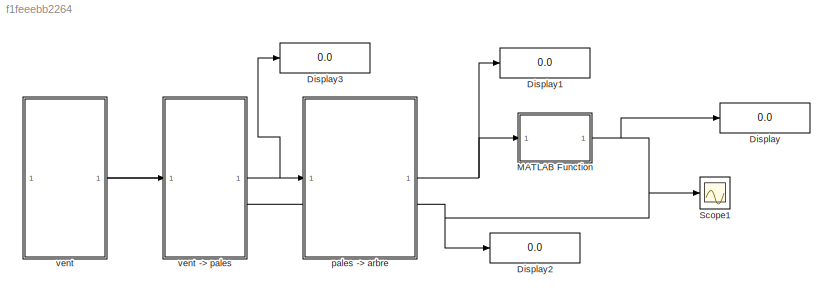
MODEL slx_f1feeebb2264
KIND model
CONFIG AbsTol = auto
CONFIG EnableMultiTasking = off
CONFIG FixedStep = 0.001
CONFIG MaxStep = auto
CONFIG MinStep = auto
CONFIG RelTol = 1e-3
CONFIG SampleTimeConstraint = Unconstrained
CONFIG SolverName = FixedStepAuto
CONFIG StartTime = 0.0
CONFIG StopTime = 10
BLOCK [Display] Display
  Decimation = 1
BLOCK [Display] Display1
  Decimation = 1
BLOCK [Display] Display2
  Decimation = 1
BLOCK [Display] Display3
  Decimation = 1
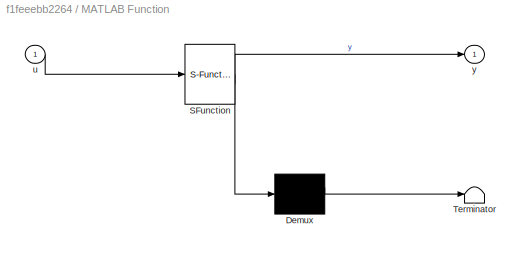
BLOCK [SubSystem] MATLAB Function
  ErrorFcn = Stateflow.Translate.translate
  PermitHierarchicalResolution = ExplicitOnly
  SFBlockType = MATLAB Function
  TreatAsAtomicUnit = on
BLOCK [Demux] MATLAB Function/ Demux 
  Outputs = 1
BLOCK [S-Function] MATLAB Function/ SFunction 
  EnableBusSupport = on
  FunctionName = sf_sfun
  PortCounts = [1 2]
  SFcnIsStateOwnerBlock = off
  SFunctionDeploymentMode = off
  Tag = Stateflow S-Function 1
BLOCK [Terminator] MATLAB Function/ Terminator 
BLOCK [Inport] MATLAB Function/u
BLOCK [Outport] MATLAB Function/y
BLOCK [Scope] Scope1
  Floating = off
  NumInputPorts = 1
  ScopeSpecificationString = Simulink.scopes.TimeScopeBlockCfg('CurrentConfiguration', extmgr.ConfigurationSet(extmgr.Configuration('Core','General UI',true),extmgr.Configuration('Core','Source UI',true),extmgr.Configuration('Sources','WiredSimulink',true,'DataLoggingVariableName','ScopeData2'),extmgr.Configuration('Visuals','Time Domain',true,'SerializedDisplays',{struct('MinYLimReal','-1.75253','MaxYLimReal','15.80974','YLa...<+1549ch>
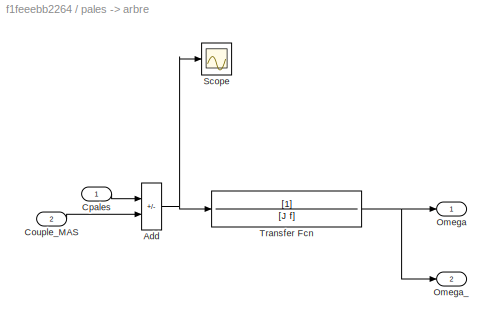
BLOCK [SubSystem] pales -> arbre
  PortSchema = {"entries":[{"content":{"sides":[{"content":{"connectorIds":["In1","Out2"]},"type":"ConnectorPlacement.EquallySpacedRectSide","uuid":"7b72f56b-829c-42d8-81af-8c3197ae28b8"},{"content":{"connectorIds":["Out1","In2"],"side":"RIGHT"},"type":"ConnectorPlacement.EquallySpacedRectSide","uuid":"933a0d6e-d8b0-4587-b5f5-dafea4e8c689"},{"content":{"connectorIds":[],"side":"TOP"},"type":"ConnectorPlacement.E...<+253ch>
BLOCK [Sum] pales -> arbre/Add
  IconShape = rectangular
  Inputs = +-
BLOCK [Inport] pales -> arbre/Couple_MAS
  Port = 2
BLOCK [Inport] pales -> arbre/Cpales
BLOCK [Outport] pales -> arbre/Omega
BLOCK [Outport] pales -> arbre/Omega_
  Port = 2
BLOCK [Scope] pales -> arbre/Scope
  Floating = off
  NumInputPorts = 1
  ScopeSpecificationString = Simulink.scopes.TimeScopeBlockCfg('CurrentConfiguration', extmgr.ConfigurationSet(extmgr.Configuration('Core','General UI',true),extmgr.Configuration('Core','Source UI',true),extmgr.Configuration('Sources','WiredSimulink',true,'DataLoggingVariableName','ScopeData1'),extmgr.Configuration('Visuals','Time Domain',true,'SerializedDisplays',{struct('MinYLimReal','-2.88564','MaxYLimReal','26.94045','YLa...<+1391ch>
BLOCK [TransferFcn] pales -> arbre/Transfer Fcn
  Denominator = [J f]
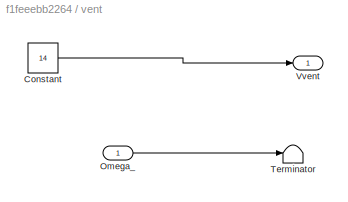
BLOCK [SubSystem] vent
  PortSchema = {"entries":[{"content":{"sides":[{"content":{"connectorIds":[]},"type":"ConnectorPlacement.EquallySpacedRectSide","uuid":"0e91f94f-7fe4-4cd1-8ec2-e654c3e0b439"},{"content":{"connectorIds":["Out1","In1"],"side":"RIGHT"},"type":"ConnectorPlacement.EquallySpacedRectSide","uuid":"94d85fba-6060-45cc-a61d-364af835c548"},{"content":{"connectorIds":[],"side":"TOP"},"type":"ConnectorPlacement.EquallySpaced...<+241ch>
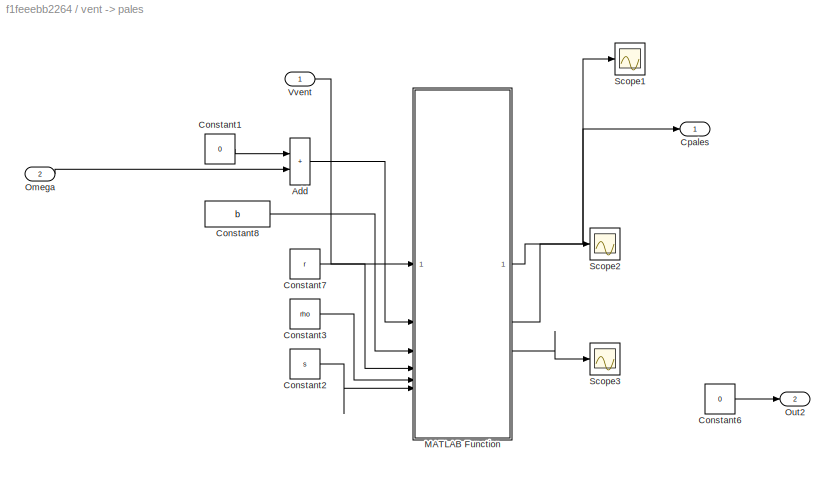
BLOCK [SubSystem] vent -> pales
  PortSchema = {"entries":[{"content":{"sides":[{"content":{"connectorIds":["In1","Out2"]},"type":"ConnectorPlacement.EquallySpacedRectSide","uuid":"7b72f56b-829c-42d8-81af-8c3197ae28b8"},{"content":{"connectorIds":["Out1","In2"],"side":"RIGHT"},"type":"ConnectorPlacement.EquallySpacedRectSide","uuid":"933a0d6e-d8b0-4587-b5f5-dafea4e8c689"},{"content":{"connectorIds":[],"side":"TOP"},"type":"ConnectorPlacement.E...<+253ch>
BLOCK [Sum] vent -> pales/Add
  IconShape = rectangular
BLOCK [Constant] vent -> pales/Constant1
  Value = 0
BLOCK [Constant] vent -> pales/Constant2
  Value = s
BLOCK [Constant] vent -> pales/Constant3
  Value = rho
BLOCK [Constant] vent -> pales/Constant6
  Value = 0
BLOCK [Constant] vent -> pales/Constant7
  Value = r
BLOCK [Constant] vent -> pales/Constant8
  Value = b
BLOCK [Outport] vent -> pales/Cpales
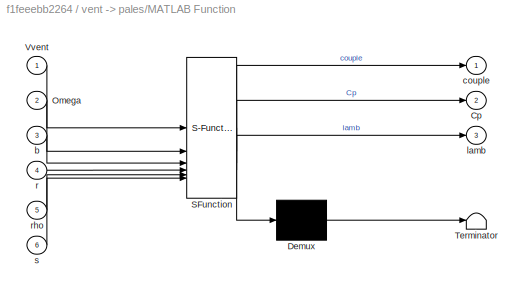
BLOCK [SubSystem] vent -> pales/MATLAB Function
  ErrorFcn = Stateflow.Translate.translate
  PermitHierarchicalResolution = ExplicitOnly
  SFBlockType = MATLAB Function
  TreatAsAtomicUnit = on
BLOCK [Demux] vent -> pales/MATLAB Function/ Demux 
  Outputs = 1
BLOCK [S-Function] vent -> pales/MATLAB Function/ SFunction 
  EnableBusSupport = on
  FunctionName = sf_sfun
  PortCounts = [6 4]
  SFcnIsStateOwnerBlock = off
  SFunctionDeploymentMode = off
  Tag = Stateflow S-Function 2
BLOCK [Terminator] vent -> pales/MATLAB Function/ Terminator 
BLOCK [Outport] vent -> pales/MATLAB Function/Cp
  Port = 2
BLOCK [Inport] vent -> pales/MATLAB Function/Omega
  Port = 2
BLOCK [Inport] vent -> pales/MATLAB Function/Vvent
BLOCK [Inport] vent -> pales/MATLAB Function/b
  Port = 3
BLOCK [Outport] vent -> pales/MATLAB Function/couple
BLOCK [Outport] vent -> pales/MATLAB Function/lamb
  Port = 3
BLOCK [Inport] vent -> pales/MATLAB Function/r
  Port = 4
BLOCK [Inport] vent -> pales/MATLAB Function/rho
  Port = 5
BLOCK [Inport] vent -> pales/MATLAB Function/s
  Port = 6
BLOCK [Inport] vent -> pales/Omega
  Port = 2
BLOCK [Outport] vent -> pales/Out2
  Port = 2
BLOCK [Scope] vent -> pales/Scope1
  Floating = off
  NumInputPorts = 1
  ScopeSpecificationString = Simulink.scopes.TimeScopeBlockCfg('CurrentConfiguration', extmgr.ConfigurationSet(extmgr.Configuration('Core','General UI',true),extmgr.Configuration('Core','Source UI',true),extmgr.Configuration('Sources','WiredSimulink',true,'DataLoggingVariableName','ScopeData2'),extmgr.Configuration('Visuals','Time Domain',true,'SerializedDisplays',{struct('MinYLimReal','-2.39911','MaxYLimReal','26.8905','YLab...<+1437ch>
BLOCK [Scope] vent -> pales/Scope2
  Floating = off
  NumInputPorts = 1
  ScopeSpecificationString = Simulink.scopes.TimeScopeBlockCfg('CurrentConfiguration', extmgr.ConfigurationSet(extmgr.Configuration('Core','General UI',true),extmgr.Configuration('Core','Source UI',true),extmgr.Configuration('Sources','WiredSimulink',true,'DataLoggingVariableName','ScopeData3'),extmgr.Configuration('Visuals','Time Domain',true,'SerializedDisplays',{struct('MinYLimReal','-0.0683','MaxYLimReal','0.61653','YLabe...<+1431ch>
BLOCK [Scope] vent -> pales/Scope3
  Floating = off
  NumInputPorts = 1
  ScopeSpecificationString = Simulink.scopes.TimeScopeBlockCfg('CurrentConfiguration', extmgr.ConfigurationSet(extmgr.Configuration('Core','General UI',true),extmgr.Configuration('Core','Source UI',true),extmgr.Configuration('Sources','WiredSimulink',true,'DataLoggingVariableName','ScopeData4'),extmgr.Configuration('Visuals','Time Domain',true,'SerializedDisplays',{struct('MinYLimReal','-3.43096','MaxYLimReal','30.8786','YLab...<+1437ch>
BLOCK [Inport] vent -> pales/Vvent
BLOCK [Constant] vent/Constant
  Value = 14
BLOCK [Inport] vent/Omega_
BLOCK [Terminator] vent/Terminator
BLOCK [Outport] vent/Vvent
NET MATLAB Function:1 -> Display2:1, Display:1, Scope1:1, pales -> arbre:2
NET pales -> arbre/Add:1 -> pales -> arbre/Scope:1, pales -> arbre/Transfer Fcn:1
LINE pales -> arbre/Couple_MAS:1 -> pales -> arbre/Add:2
LINE pales -> arbre/Cpales:1 -> pales -> arbre/Add:1
NET pales -> arbre/Transfer Fcn:1 -> pales -> arbre/Omega:1, pales -> arbre/Omega_:1
NET pales -> arbre:1 -> Display1:1, MATLAB Function:1
LINE pales -> arbre:2 -> vent -> pales:2
LINE vent -> pales/Add:1 -> vent -> pales/MATLAB Function:2
LINE vent -> pales/Constant1:1 -> vent -> pales/Add:1
LINE vent -> pales/Constant2:1 -> vent -> pales/MATLAB Function:6
LINE vent -> pales/Constant3:1 -> vent -> pales/MATLAB Function:5
LINE vent -> pales/Constant6:1 -> vent -> pales/Out2:1
LINE vent -> pales/Constant7:1 -> vent -> pales/MATLAB Function:4
LINE vent -> pales/Constant8:1 -> vent -> pales/MATLAB Function:3
NET vent -> pales/MATLAB Function:1 -> vent -> pales/Cpales:1, vent -> pales/Scope1:1
LINE vent -> pales/MATLAB Function:2 -> vent -> pales/Scope2:1
LINE vent -> pales/MATLAB Function:3 -> vent -> pales/Scope3:1
LINE vent -> pales/Omega:1 -> vent -> pales/Add:2
LINE vent -> pales/Vvent:1 -> vent -> pales/MATLAB Function:1
NET vent -> pales:1 -> Display3:1, pales -> arbre:1
LINE vent -> pales:2 -> vent:1
LINE vent/Constant:1 -> vent/Vvent:1
LINE vent/Omega_:1 -> vent/Terminator:1
LINE vent:1 -> vent -> pales:1
note: NET lines group one-source signal fan-out (src -> all destinations, sorted); 1:1 wires keep LINE
CHART MATLAB Function states=1 transitions=1
  STATE_LABEL 'eML_blk_kernel()'
  STATE_LABEL 'SCRIPT:\nfunction y = fcn(u)\n\ny = 0.0015*u^2-0.00056*u+0.0037;  '
CHART vent -> pales/MATLAB Function states=1 transitions=1
  STATE_LABEL 'eML_blk_kernel()'
  STATE_LABEL "SCRIPT:\nfunction [couple,Cp,lamb] = fcn(Vvent,Omega,b,r,rho,s)\n\n    lamb=r*Omega/Vvent;\n    if lamb==0    % Pour éviter d'avoir une division par zero par la suite\n        lamb=0.001;\n    end\n        lamb1=1/((1/(lamb+0.089*b))-(0.035/(b^3+1)));\n        Cp=0.5*(116/lamb1-0.4*(b-5))*exp(-16.5/lamb1);\n        Ct=Cp/lamb;\n        couple=0.5*rho*Ct*r*s*Vvent^2;\n\n\n\na=1;"
CHART  states=0 transitions=0
CHART  states=0 transitions=0
